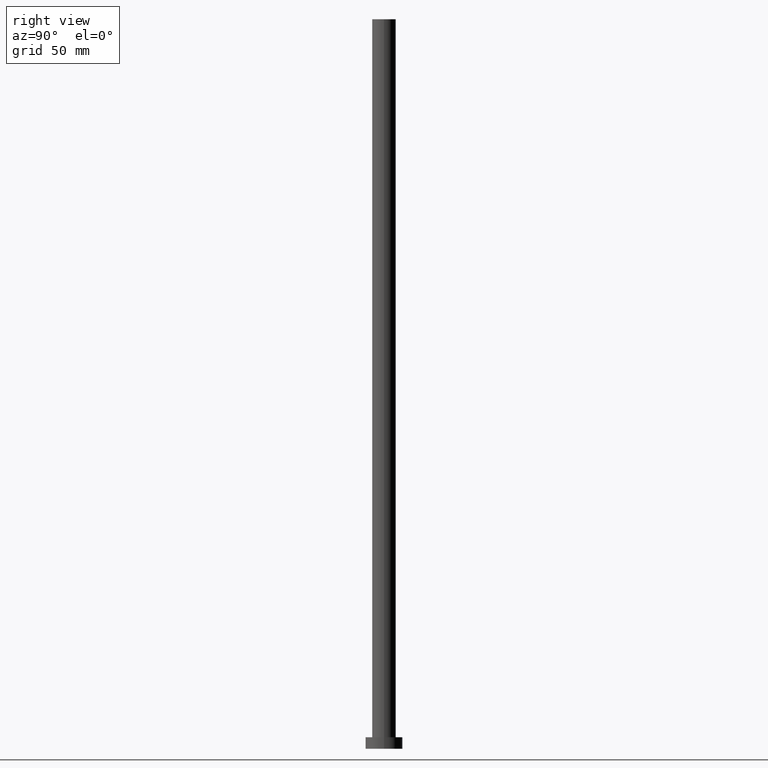
[diagram: clean part render]
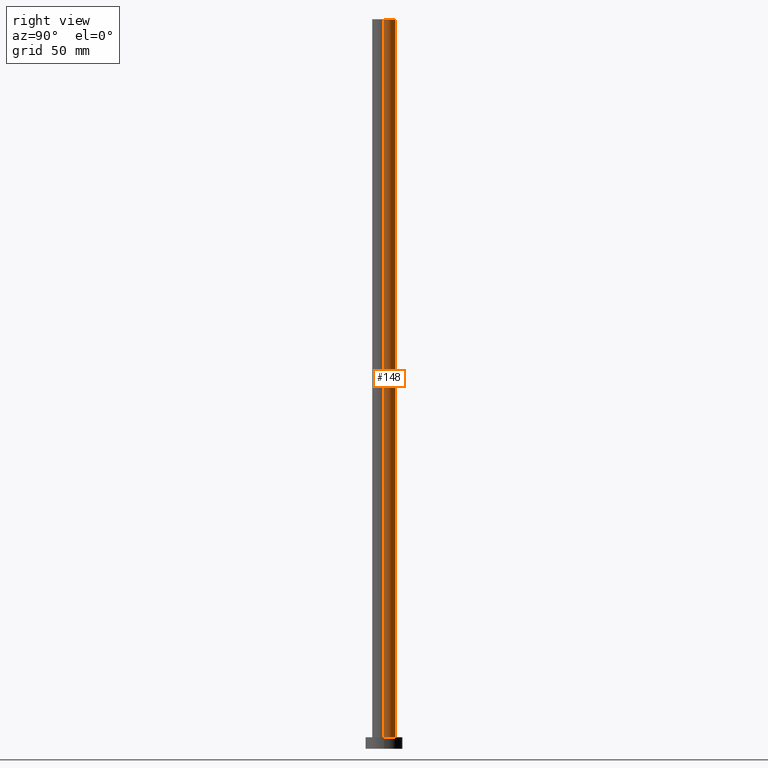
[diagram: same view with one face highlighted and labeled with its STEP entity id]
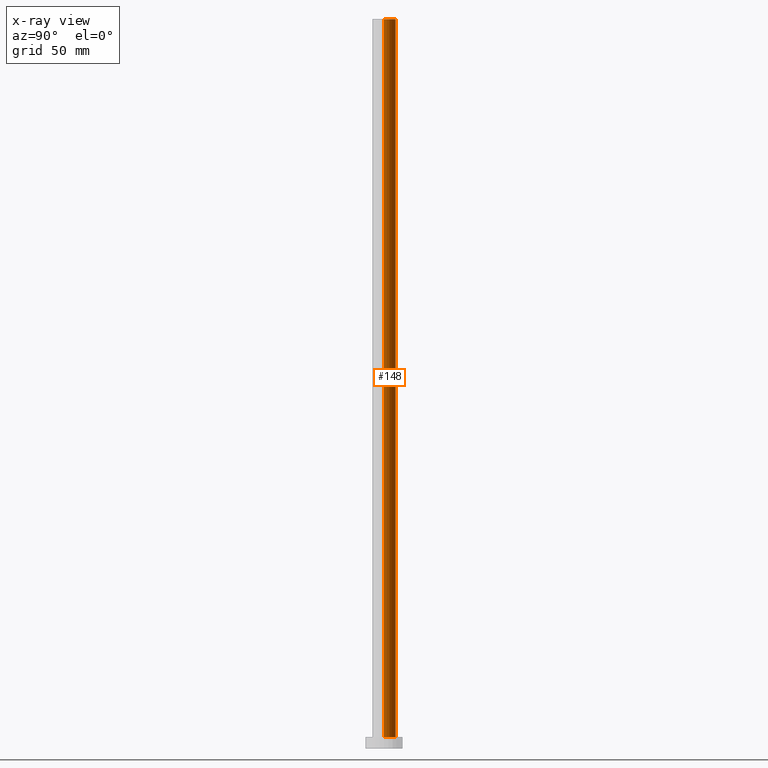
[diagram: x-ray of the same camera — body ghosted, the highlighted face saturated]
A machine part, right view. The second image highlights one B-rep face of the part: STEP entity #148.
The next image is the same camera in x-ray: the body ghosted, the highlighted face saturated — about 0% of this face is hidden behind the body in this view.
In plain terms, the highlighted cylindrical surface (edge-blend (fillet) strip) has radius 5.1 mm, axis along (-0, -0, -1).
Its self-contained STEP definition (entity closure, byte-faithful):
#10 = CYLINDRICAL_SURFACE ( 'NONE', #78, 5.100000000000001421 ) ;
#13 = EDGE_CURVE ( 'NONE', #204, #30, #147, .T. ) ;
#15 = DIRECTION ( 'NONE',  ( -0.000000000000000000, -0.000000000000000000, -1.000000000000000000 ) ) ;
#16 = CARTESIAN_POINT ( 'NONE',  ( -5.100000000000001421, 0.000000000000000000, 315.0000000000000000 ) ) ;
#20 = CARTESIAN_POINT ( 'NONE',  ( 5.100000000000001421, 6.245698675651502811E-16, 315.0000000000000000 ) ) ;
#26 = DIRECTION ( 'NONE',  ( -0.000000000000000000, -0.000000000000000000, -1.000000000000000000 ) ) ;
#29 = CIRCLE ( 'NONE', #170, 5.100000000000001421 ) ;
#30 = VERTEX_POINT ( 'NONE', #173 ) ;
#31 = CARTESIAN_POINT ( 'NONE',  ( 0.000000000000000000, 0.000000000000000000, 315.0000000000000000 ) ) ;
#33 = DIRECTION ( 'NONE',  ( 1.000000000000000000, 0.000000000000000000, 0.000000000000000000 ) ) ;
#48 = ORIENTED_EDGE ( 'NONE', *, *, #108, .F. ) ;
#50 = ORIENTED_EDGE ( 'NONE', *, *, #177, .T. ) ;
#52 = FACE_OUTER_BOUND ( 'NONE', #127, .T. ) ;
#71 = CARTESIAN_POINT ( 'NONE',  ( 0.000000000000000000, 0.000000000000000000, 5.000000000000000000 ) ) ;
#75 = CARTESIAN_POINT ( 'NONE',  ( -5.100000000000001421, 0.000000000000000000, 5.000000000000000000 ) ) ;
#78 = AXIS2_PLACEMENT_3D ( 'NONE', #211, #15, #223 ) ;
#94 = EDGE_CURVE ( 'NONE', #204, #239, #141, .T. ) ;
#95 = AXIS2_PLACEMENT_3D ( 'NONE', #31, #151, #222 ) ;
#102 = DIRECTION ( 'NONE',  ( -0.000000000000000000, -0.000000000000000000, -1.000000000000000000 ) ) ;
#108 = EDGE_CURVE ( 'NONE', #239, #150, #115, .T. ) ;
#115 = LINE ( 'NONE', #120, #181 ) ;
#120 = CARTESIAN_POINT ( 'NONE',  ( -5.100000000000001421, 0.000000000000000000, 315.0000000000000000 ) ) ;
#127 = EDGE_LOOP ( 'NONE', ( #130, #163, #50, #48 ) ) ;
#130 = ORIENTED_EDGE ( 'NONE', *, *, #94, .F. ) ;
#135 = DIRECTION ( 'NONE',  ( 0.000000000000000000, 0.000000000000000000, 1.000000000000000000 ) ) ;
#141 = CIRCLE ( 'NONE', #95, 5.100000000000001421 ) ;
#147 = LINE ( 'NONE', #203, #238 ) ;
#148 = ADVANCED_FACE ( 'NONE', ( #52 ), #10, .T. ) ;
#150 = VERTEX_POINT ( 'NONE', #75 ) ;
#151 = DIRECTION ( 'NONE',  ( 0.000000000000000000, 0.000000000000000000, 1.000000000000000000 ) ) ;
#163 = ORIENTED_EDGE ( 'NONE', *, *, #13, .T. ) ;
#170 = AXIS2_PLACEMENT_3D ( 'NONE', #71, #135, #33 ) ;
#173 = CARTESIAN_POINT ( 'NONE',  ( 5.100000000000001421, 6.245698675651502811E-16, 5.000000000000000000 ) ) ;
#177 = EDGE_CURVE ( 'NONE', #30, #150, #29, .T. ) ;
#181 = VECTOR ( 'NONE', #102, 1000.000000000000000 ) ;
#203 = CARTESIAN_POINT ( 'NONE',  ( 5.100000000000001421, 6.245698675651502811E-16, 315.0000000000000000 ) ) ;
#204 = VERTEX_POINT ( 'NONE', #20 ) ;
#211 = CARTESIAN_POINT ( 'NONE',  ( 0.000000000000000000, 0.000000000000000000, 315.0000000000000000 ) ) ;
#222 = DIRECTION ( 'NONE',  ( 1.000000000000000000, 0.000000000000000000, 0.000000000000000000 ) ) ;
#223 = DIRECTION ( 'NONE',  ( -1.000000000000000000, 0.000000000000000000, 0.000000000000000000 ) ) ;
#238 = VECTOR ( 'NONE', #26, 1000.000000000000000 ) ;
#239 = VERTEX_POINT ( 'NONE', #16 ) ;